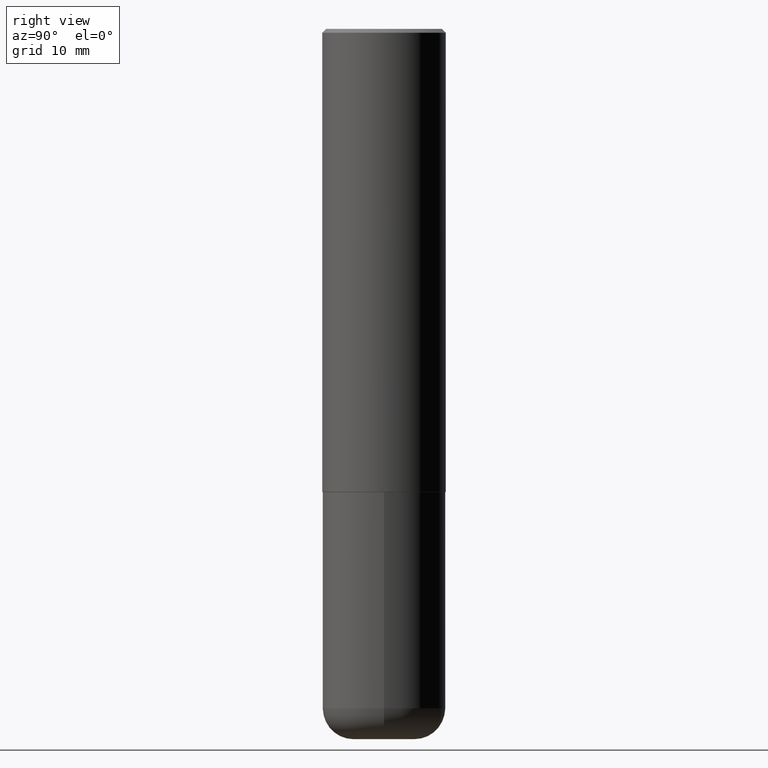
[diagram: clean part render]
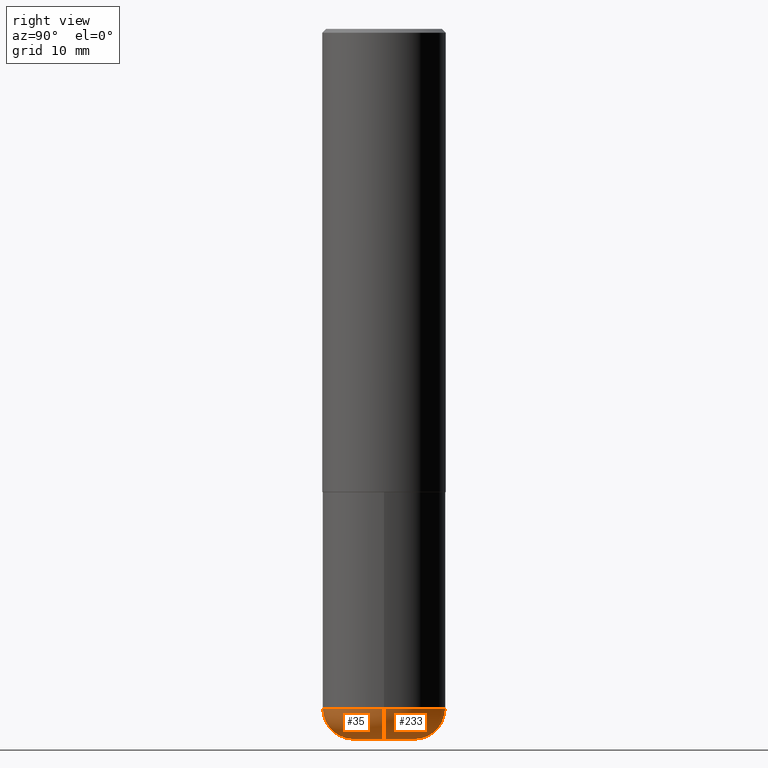
[diagram: same view with one multi-face feature highlighted, each face labeled with its STEP entity id]
A machine part, right view. The highlighted faces form ONE feature: a constant-radius fillet chain: 2 tangent blend faces with common blend radius 4.0005 mm. The faces share edges in the B-rep.
Their STEP definitions:
[1] entity #233 (Torus):
#1 = EDGE_CURVE ( 'NONE', #2, #356, #378, .T. ) ;
#2 = VERTEX_POINT ( 'NONE', #124 ) ;
#3 = EDGE_LOOP ( 'NONE', ( #28, #325, #158, #416 ) ) ;
#5 = DIRECTION ( 'NONE',  ( 1.000000000000000000, -6.982962677686268288E-15, 0.000000000000000000 ) ) ;
#6 = EDGE_CURVE ( 'NONE', #363, #125, #137, .T. ) ;
#28 = ORIENTED_EDGE ( 'NONE', *, *, #347, .T. ) ;
#43 = DIRECTION ( 'NONE',  ( 1.000000000000000000, -6.982962677686268288E-15, 0.000000000000000000 ) ) ;
#74 = FACE_OUTER_BOUND ( 'NONE', #3, .T. ) ;
#86 = CIRCLE ( 'NONE', #316, 0.1574500000000000621 ) ;
#113 = DIRECTION ( 'NONE',  ( -2.445468806185136597E-29, 3.491481338843145583E-15, 1.000000000000000000 ) ) ;
#120 = CARTESIAN_POINT ( 'NONE',  ( 8.857488016002564476E-29, -1.264614540928987199E-14, -3.621999999999999886 ) ) ;
#124 = CARTESIAN_POINT ( 'NONE',  ( 0.1574500000000000621, -1.374561288289157517E-14, -3.621999999999999886 ) ) ;
#125 = VERTEX_POINT ( 'NONE', #309 ) ;
#137 = CIRCLE ( 'NONE', #394, 0.1575000000000001399 ) ;
#141 = DIRECTION ( 'NONE',  ( 1.000000000000000000, -6.982962677686266711E-15, 4.883557194083112901E-29 ) ) ;
#143 = AXIS2_PLACEMENT_3D ( 'NONE', #232, #348, #141 ) ;
#153 = EDGE_CURVE ( 'NONE', #356, #125, #214, .T. ) ;
#157 = AXIS2_PLACEMENT_3D ( 'NONE', #336, #269, #43 ) ;
#158 = ORIENTED_EDGE ( 'NONE', *, *, #153, .F. ) ;
#181 = DIRECTION ( 'NONE',  ( -1.000000000000000000, 7.105427357601003436E-15, 0.000000000000000000 ) ) ;
#190 = DIRECTION ( 'NONE',  ( -6.982962677686266711E-15, -1.000000000000000000, 3.491481338843145583E-15 ) ) ;
#214 = CIRCLE ( 'NONE', #157, 0.3149500000000000632 ) ;
#232 = CARTESIAN_POINT ( 'NONE',  ( 8.472326679028403758E-29, -1.209623709842207707E-14, -3.464499999999999691 ) ) ;
#233 = ADVANCED_FACE ( 'NONE', ( #74 ), #384, .T. ) ;
#255 = CARTESIAN_POINT ( 'NONE',  ( 0.1574500000000000066, -1.319570457202378025E-14, -3.464499999999999691 ) ) ;
#269 = DIRECTION ( 'NONE',  ( -2.445468806185136597E-29, 3.491481338843145583E-15, 1.000000000000000000 ) ) ;
#284 = CARTESIAN_POINT ( 'NONE',  ( 0.3149500000000001743, -1.429552119375936694E-14, -3.464499999999999247 ) ) ;
#309 = CARTESIAN_POINT ( 'NONE',  ( -0.3149500000000001743, -9.858382752145637926E-15, -3.464499999999999247 ) ) ;
#316 = AXIS2_PLACEMENT_3D ( 'NONE', #120, #113, #320 ) ;
#320 = DIRECTION ( 'NONE',  ( 1.000000000000000000, -6.982962677686263555E-15, 0.000000000000000000 ) ) ;
#325 = ORIENTED_EDGE ( 'NONE', *, *, #6, .T. ) ;
#326 = AXIS2_PLACEMENT_3D ( 'NONE', #255, #190, #5 ) ;
#332 = CARTESIAN_POINT ( 'NONE',  ( -0.1574500000000000621, -1.069288931199061498E-14, -3.621999999999999886 ) ) ;
#336 = CARTESIAN_POINT ( 'NONE',  ( 8.472326679028403758E-29, -1.209623709842207549E-14, -3.464499999999999247 ) ) ;
#347 = EDGE_CURVE ( 'NONE', #2, #363, #86, .T. ) ;
#348 = DIRECTION ( 'NONE',  ( -2.445468806185136597E-29, 3.491481338843145583E-15, 1.000000000000000000 ) ) ;
#356 = VERTEX_POINT ( 'NONE', #284 ) ;
#363 = VERTEX_POINT ( 'NONE', #332 ) ;
#378 = CIRCLE ( 'NONE', #326, 0.1575000000000001399 ) ;
#384 = TOROIDAL_SURFACE ( 'NONE', #143, 0.1574500000000000066, 0.1575000000000000844 ) ;
#387 = CARTESIAN_POINT ( 'NONE',  ( -0.1574500000000000066, -1.097748756096779869E-14, -3.464499999999999691 ) ) ;
#392 = DIRECTION ( 'NONE',  ( 7.105427357601001859E-15, 1.000000000000000000, -3.491481338843145583E-15 ) ) ;
#394 = AXIS2_PLACEMENT_3D ( 'NONE', #387, #392, #181 ) ;
#416 = ORIENTED_EDGE ( 'NONE', *, *, #1, .F. ) ;
[2] entity #35 (Torus):
#1 = EDGE_CURVE ( 'NONE', #2, #356, #378, .T. ) ;
#2 = VERTEX_POINT ( 'NONE', #124 ) ;
#5 = DIRECTION ( 'NONE',  ( 1.000000000000000000, -6.982962677686268288E-15, 0.000000000000000000 ) ) ;
#6 = EDGE_CURVE ( 'NONE', #363, #125, #137, .T. ) ;
#35 = ADVANCED_FACE ( 'NONE', ( #355 ), #187, .T. ) ;
#54 = CIRCLE ( 'NONE', #283, 0.3149500000000000632 ) ;
#89 = CARTESIAN_POINT ( 'NONE',  ( 8.472326679028403758E-29, -1.209623709842207707E-14, -3.464499999999999691 ) ) ;
#96 = DIRECTION ( 'NONE',  ( -2.445468806185136597E-29, 3.491481338843145583E-15, 1.000000000000000000 ) ) ;
#107 = ORIENTED_EDGE ( 'NONE', *, *, #1, .T. ) ;
#114 = EDGE_CURVE ( 'NONE', #125, #356, #54, .T. ) ;
#124 = CARTESIAN_POINT ( 'NONE',  ( 0.1574500000000000621, -1.374561288289157517E-14, -3.621999999999999886 ) ) ;
#125 = VERTEX_POINT ( 'NONE', #309 ) ;
#131 = CARTESIAN_POINT ( 'NONE',  ( 8.857488016002564476E-29, -1.264614540928987199E-14, -3.621999999999999886 ) ) ;
#137 = CIRCLE ( 'NONE', #394, 0.1575000000000001399 ) ;
#162 = ORIENTED_EDGE ( 'NONE', *, *, #279, .T. ) ;
#178 = AXIS2_PLACEMENT_3D ( 'NONE', #89, #323, #220 ) ;
#181 = DIRECTION ( 'NONE',  ( -1.000000000000000000, 7.105427357601003436E-15, 0.000000000000000000 ) ) ;
#187 = TOROIDAL_SURFACE ( 'NONE', #178, 0.1574500000000000066, 0.1575000000000000844 ) ;
#190 = DIRECTION ( 'NONE',  ( -6.982962677686266711E-15, -1.000000000000000000, 3.491481338843145583E-15 ) ) ;
#198 = CARTESIAN_POINT ( 'NONE',  ( 8.472326679028403758E-29, -1.209623709842207549E-14, -3.464499999999999247 ) ) ;
#202 = DIRECTION ( 'NONE',  ( 1.000000000000000000, -6.982962677686263555E-15, 0.000000000000000000 ) ) ;
#220 = DIRECTION ( 'NONE',  ( 1.000000000000000000, -6.982962677686266711E-15, 4.883557194083112901E-29 ) ) ;
#222 = EDGE_LOOP ( 'NONE', ( #390, #162, #107, #259 ) ) ;
#226 = DIRECTION ( 'NONE',  ( 1.000000000000000000, -6.982962677686268288E-15, 0.000000000000000000 ) ) ;
#248 = CIRCLE ( 'NONE', #350, 0.1574500000000000621 ) ;
#255 = CARTESIAN_POINT ( 'NONE',  ( 0.1574500000000000066, -1.319570457202378025E-14, -3.464499999999999691 ) ) ;
#259 = ORIENTED_EDGE ( 'NONE', *, *, #114, .F. ) ;
#279 = EDGE_CURVE ( 'NONE', #363, #2, #248, .T. ) ;
#283 = AXIS2_PLACEMENT_3D ( 'NONE', #198, #96, #226 ) ;
#284 = CARTESIAN_POINT ( 'NONE',  ( 0.3149500000000001743, -1.429552119375936694E-14, -3.464499999999999247 ) ) ;
#309 = CARTESIAN_POINT ( 'NONE',  ( -0.3149500000000001743, -9.858382752145637926E-15, -3.464499999999999247 ) ) ;
#323 = DIRECTION ( 'NONE',  ( -2.445468806185136597E-29, 3.491481338843145583E-15, 1.000000000000000000 ) ) ;
#326 = AXIS2_PLACEMENT_3D ( 'NONE', #255, #190, #5 ) ;
#332 = CARTESIAN_POINT ( 'NONE',  ( -0.1574500000000000621, -1.069288931199061498E-14, -3.621999999999999886 ) ) ;
#344 = DIRECTION ( 'NONE',  ( -2.445468806185136597E-29, 3.491481338843145583E-15, 1.000000000000000000 ) ) ;
#350 = AXIS2_PLACEMENT_3D ( 'NONE', #131, #344, #202 ) ;
#355 = FACE_OUTER_BOUND ( 'NONE', #222, .T. ) ;
#356 = VERTEX_POINT ( 'NONE', #284 ) ;
#363 = VERTEX_POINT ( 'NONE', #332 ) ;
#378 = CIRCLE ( 'NONE', #326, 0.1575000000000001399 ) ;
#387 = CARTESIAN_POINT ( 'NONE',  ( -0.1574500000000000066, -1.097748756096779869E-14, -3.464499999999999691 ) ) ;
#390 = ORIENTED_EDGE ( 'NONE', *, *, #6, .F. ) ;
#392 = DIRECTION ( 'NONE',  ( 7.105427357601001859E-15, 1.000000000000000000, -3.491481338843145583E-15 ) ) ;
#394 = AXIS2_PLACEMENT_3D ( 'NONE', #387, #392, #181 ) ;